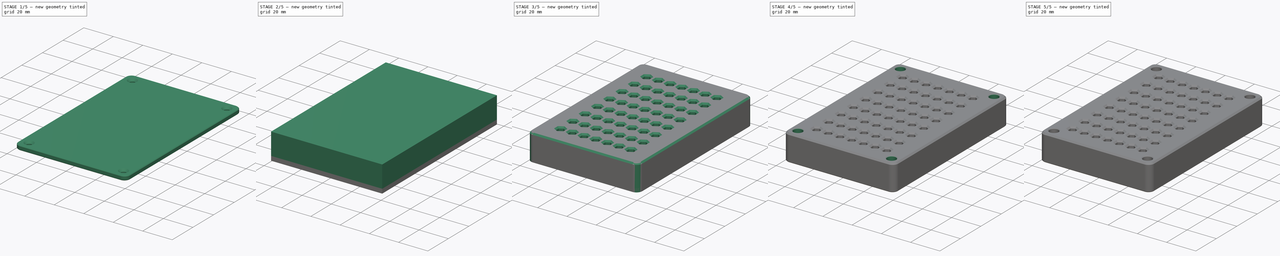
[diagram: build sequence overview — one tinted view per stage of 5, left to right]
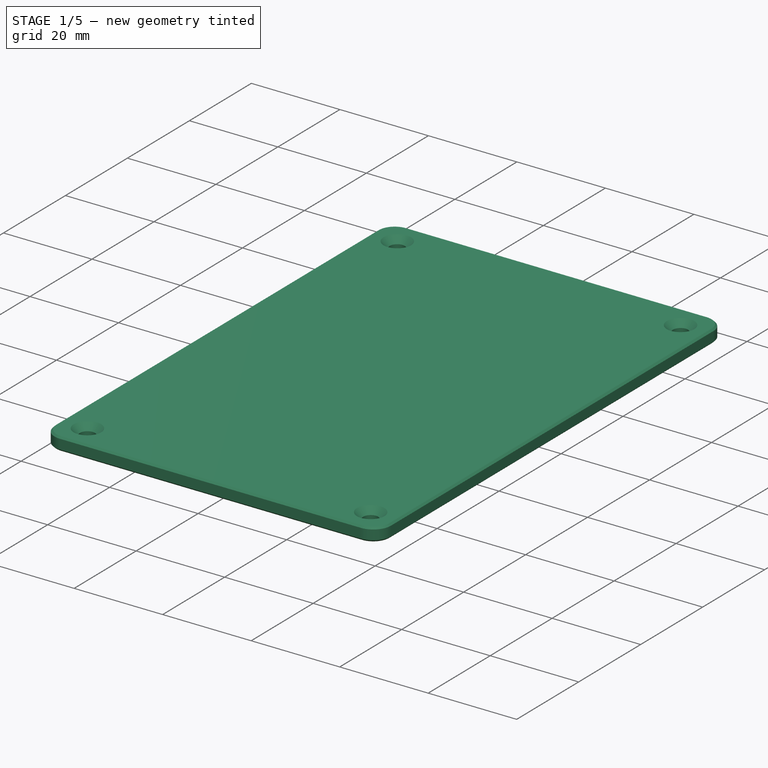
[diagram: stage 1 of 5 — iso view after this stage's code; geometry added in this stage tinted green]
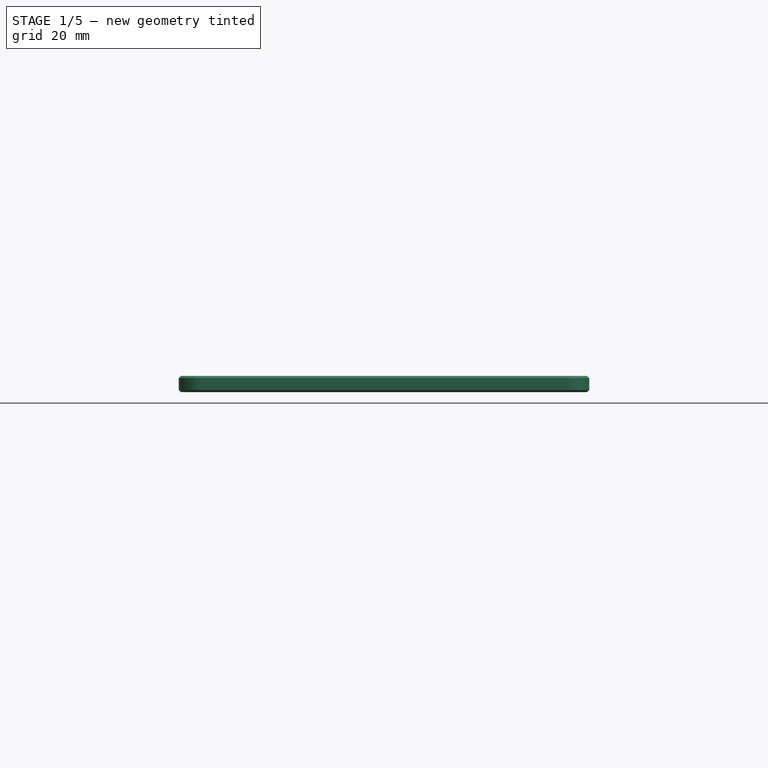
[diagram: stage 1 of 5 — front view after this stage's code; geometry added in this stage tinted green]
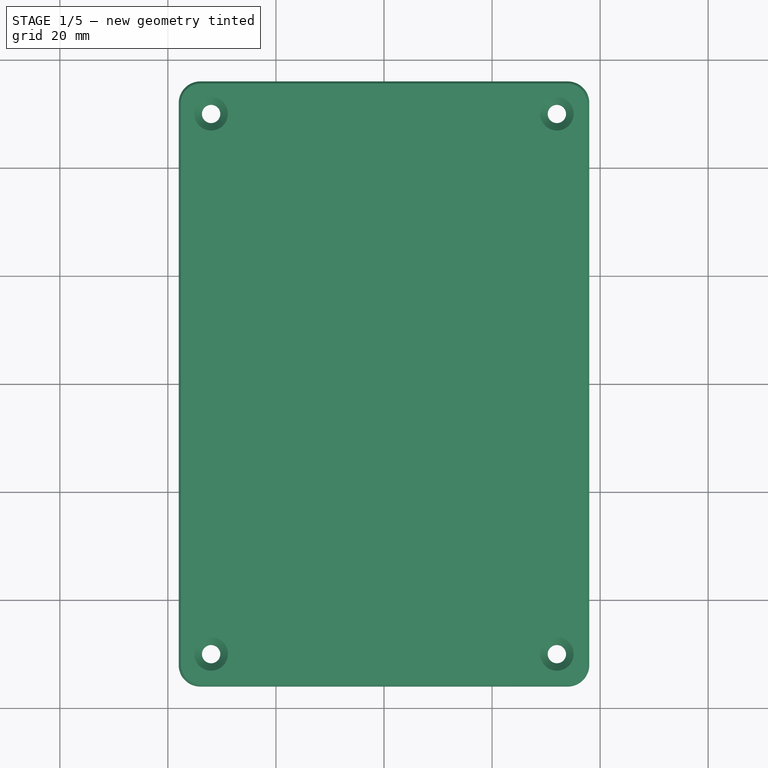
[diagram: stage 1 of 5 — top view after this stage's code; geometry added in this stage tinted green]
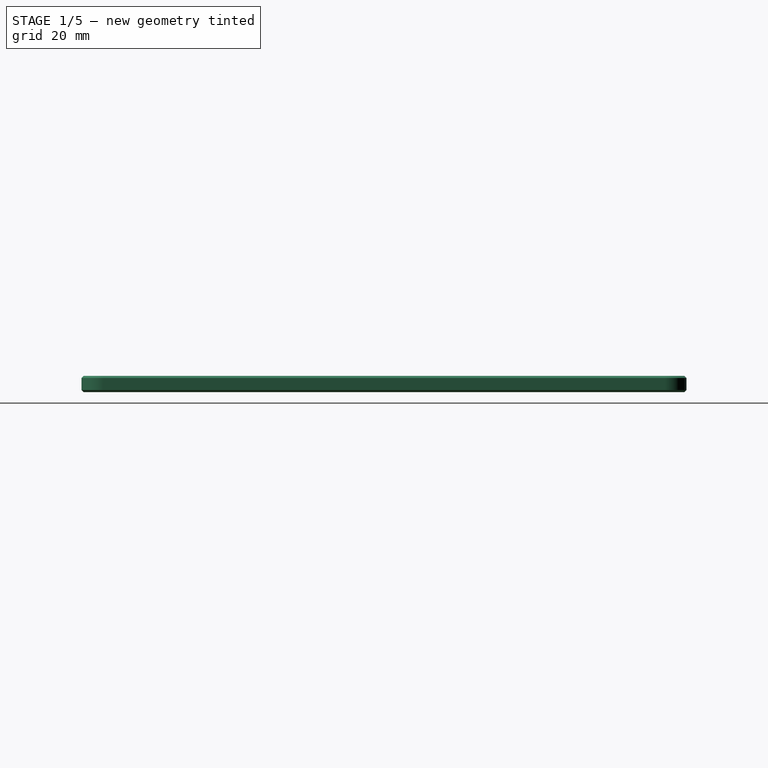
[diagram: stage 1 of 5 — right view after this stage's code; geometry added in this stage tinted green]
FCSTD DOCUMENT  (FreeCAD 0.22R36117 (Git))
Label: bit-holder
License: All rights reserved
LicenseURL: http://en.wikipedia.org/wiki/All_rights_reserved
objects: Sketcher::SketchObject×12, PartDesign::Pocket×7, PartDesign::Chamfer×6, PartDesign::Pad×5, PartDesign::Fillet×3, PartDesign::Body×3, PartDesign::LinearPattern×3, Spreadsheet::Sheet×1, PartDesign::MultiTransform×1
note: 61 computed .brp shape members not serialized (recipe doc carries the construction recipe); baked Part::Feature solids carry a one-line shape summary decoded from their .brp

FEATURE [PartDesign::Body] Body002
  Group = -> [Sketch,Pad,Sketch005,Pocket002,LinearPattern,Sketch006,Pad003,Sketch007,Pocket003,MultiTransform,LinearPattern001,LinearPattern002,Sketch008,Pocket004,Fillet,Chamfer,Chamfer002,Sketch010,Pocket005,Chamfer003]
  Origin = -> Origin002
  Tip = -> Chamfer003
FEATURE [Sketcher::SketchObject] Sketch011
  FullyConstrained = true
  MapMode = 5
  Support = -> [XY_Plane]
  expr: Constraints[8] = <<q>>.plate_x_size
  expr: Constraints[9] = <<q>>.plate_y_size
  sketch-geometry (4):
    g0: LineSegment StartX=-38 StartY=56 StartZ=0 EndX=-38 EndY=-56 EndZ=0
    g1: LineSegment StartX=-38 StartY=-56 StartZ=0 EndX=38 EndY=-56 EndZ=0
    g2: LineSegment StartX=38 StartY=-56 StartZ=0 EndX=38 EndY=56 EndZ=0
    g3: LineSegment StartX=38 StartY=56 StartZ=0 EndX=-38 EndY=56 EndZ=0
  constraints (11):
    c: Coincident(g0,g1)
    c: Coincident(g1,g2)
    c: Coincident(g2,g3)
    c: Coincident(g3,g0)
    c: Vertical(g0)
    c: Vertical(g2)
    c: Horizontal(g1)
    c: Horizontal(g3)
    c: DistanceX(g1,g1) = 76
    c: DistanceY(g2,g2) = 112
    c: Symmetric(g0,g2,g-1)
FEATURE [Sketcher::SketchObject] Sketch012
  FullyConstrained = true
  MapMode = 5
  Placement = pos=(0,0,0) rot=(1,0,0;3.14159rad)
  expr: Constraints[8] = <<q>>.plate_x_size / 2 - 6
  expr: Constraints[9] = <<q>>.plate_y_size / 2 - 6
  sketch-geometry (4):
    g0: Circle CenterX=32 CenterY=-50 CenterZ=0 NormalX=0 NormalY=0 NormalZ=1 AngleXU=0 Radius=1.7
    g1: Circle CenterX=32 CenterY=50 CenterZ=0 NormalX=0 NormalY=0 NormalZ=1 AngleXU=0 Radius=1.7
    g2: Circle CenterX=-32 CenterY=50 CenterZ=0 NormalX=0 NormalY=0 NormalZ=1 AngleXU=0 Radius=1.7
    g3: Circle CenterX=-32 CenterY=-50 CenterZ=0 NormalX=0 NormalY=0 NormalZ=1 AngleXU=0 Radius=1.7
  constraints (10):
    c: Equal(g0,g1)
    c: Equal(g0,g2)
    c: Equal(g0,g3)
    c: Diameter(g0) = 3.4
    c: Symmetric(g3,g1,g-1)
    c: Symmetric(g2,g0,g-1)
    c: Vertical(g0,g1)
    c: Horizontal(g1,g2)
    c: DistanceX(g3,g-1) = 32
    c: DistanceY(g-1,g2) = 50
FEATURE [PartDesign::Pad] Pad004
  Direction = (0,0,1)
  Length = 3
  Length2 = 10
  Profile = -> Sketch011
  ReferenceAxis = -> Sketch011 [N_Axis]
  Suppressed = false
  Type = 0
FEATURE [PartDesign::Pocket] Pocket006
  BaseFeature = -> Pad004
  Direction = (0,0,1)
  Length = 5
  Length2 = 5
  Profile = -> Sketch012
  ReferenceAxis = -> Sketch012 [N_Axis]
  Suppressed = false
  Type = 0
FEATURE [PartDesign::Chamfer] Chamfer004
  Angle = 45
  Base = -> Pocket006 [Edge18,Edge19,Edge17,Edge20]
  BaseFeature = -> Pocket006
  ChamferType = 0
  FlipDirection = false
  Size = 1.4
  Size2 = 1
  SupportTransform = false
  Suppressed = false
  UseAllEdges = false
FEATURE [PartDesign::Fillet] Fillet002
  Base = -> Chamfer004 [Edge11,Edge14,Edge16,Edge12]
  BaseFeature = -> Chamfer004
  Radius = 4
  SupportTransform = false
  Suppressed = false
  UseAllEdges = false
  expr: Radius = <<q>>.box_corner_filet
FEATURE [PartDesign::Chamfer] Chamfer005
  Angle = 45
  Base = -> Fillet002 [Edge5,Edge22]
  BaseFeature = -> Fillet002
  ChamferType = 0
  FlipDirection = false
  Size = 0.4
  Size2 = 1
  SupportTransform = false
  Suppressed = false
  UseAllEdges = false
FEATURE [PartDesign::Body] Body
  Group = -> [Sketch011,Sketch012,Pad004,Pocket006,Chamfer004,Fillet002,Chamfer005]
  Origin = -> Origin
  Tip = -> Chamfer005
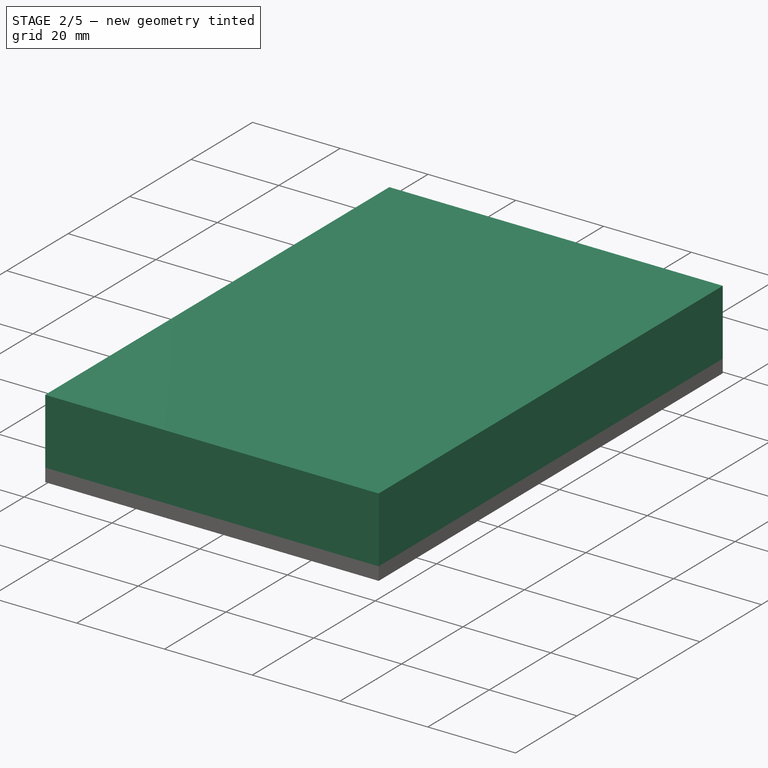
[diagram: stage 2 of 5 — iso view after this stage's code; geometry added in this stage tinted green]
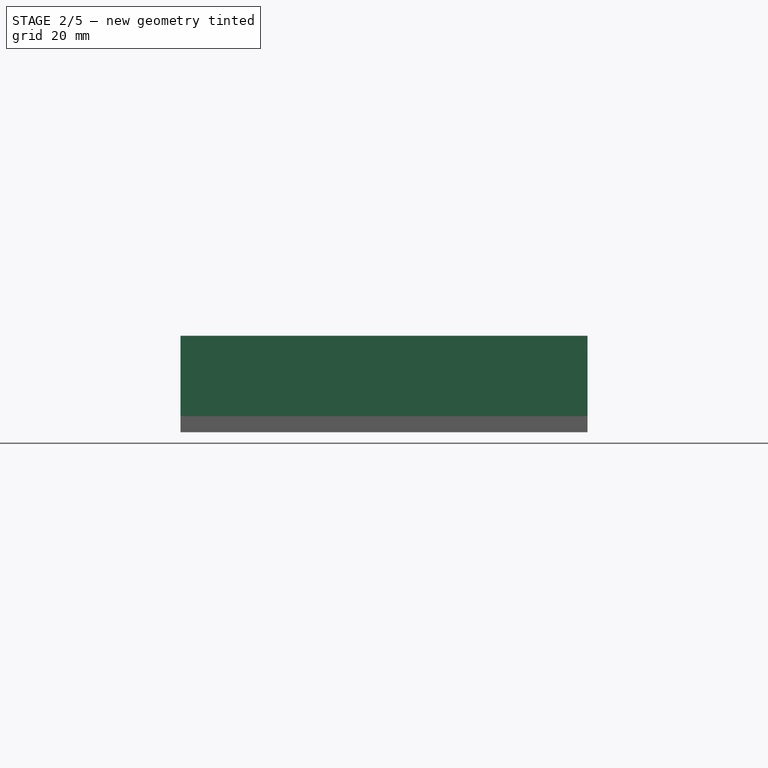
[diagram: stage 2 of 5 — front view after this stage's code; geometry added in this stage tinted green]
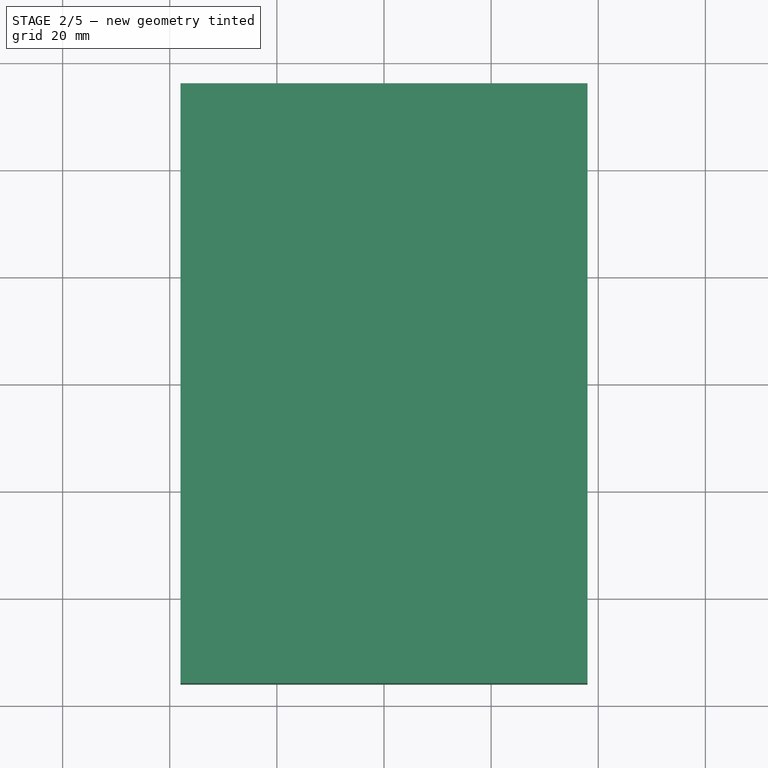
[diagram: stage 2 of 5 — top view after this stage's code; geometry added in this stage tinted green]
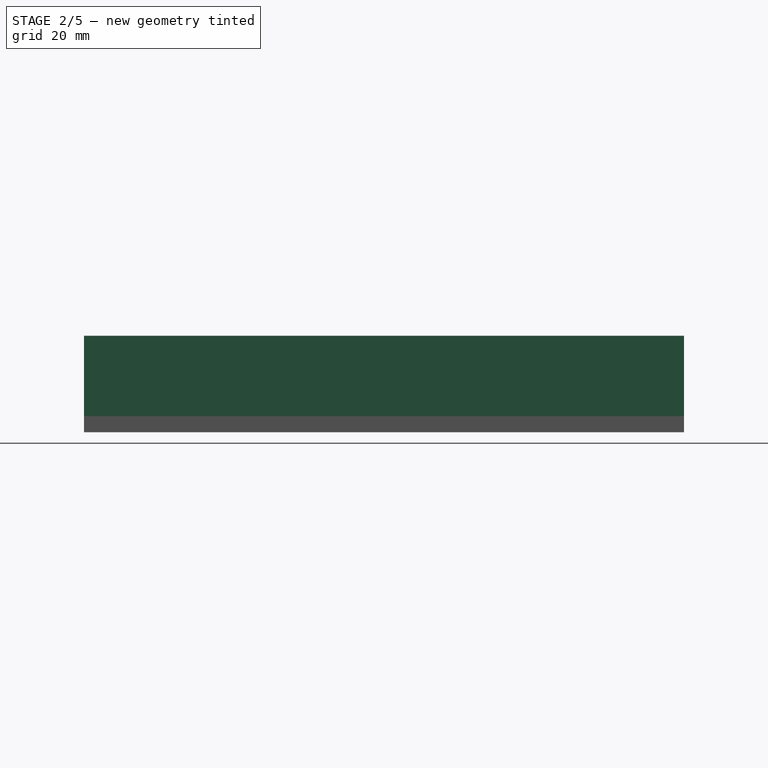
[diagram: stage 2 of 5 — right view after this stage's code; geometry added in this stage tinted green]
FEATURE [PartDesign::Body] Body001
  Group = -> [Sketch001,Pad001,Sketch002,Pocket,Sketch003,Pad002,Sketch004,Pocket001,Fillet001,Chamfer001]
  Origin = -> Origin001
  Tip = -> Chamfer001
FEATURE [Sketcher::SketchObject] Sketch
  FullyConstrained = true
  MapMode = 5
  Support = -> [XY_Plane002]
  expr: Constraints[8] = <<q>>.plate_x_size
  expr: Constraints[9] = <<q>>.plate_y_size
  sketch-geometry (4):
    g0: LineSegment StartX=-38 StartY=56 StartZ=0 EndX=-38 EndY=-56 EndZ=0
    g1: LineSegment StartX=-38 StartY=-56 StartZ=0 EndX=38 EndY=-56 EndZ=0
    g2: LineSegment StartX=38 StartY=-56 StartZ=0 EndX=38 EndY=56 EndZ=0
    g3: LineSegment StartX=38 StartY=56 StartZ=0 EndX=-38 EndY=56 EndZ=0
  constraints (11):
    c: Coincident(g0,g1)
    c: Coincident(g1,g2)
    c: Coincident(g2,g3)
    c: Coincident(g3,g0)
    c: Vertical(g0)
    c: Vertical(g2)
    c: Horizontal(g1)
    c: Horizontal(g3)
    c: DistanceX(g1,g1) = 76
    c: DistanceY(g2,g2) = 112
    c: Symmetric(g0,g2,g-1)
FEATURE [PartDesign::Pad] Pad  label="base"
  Direction = (0,0,1)
  Length = 3
  Length2 = 10
  Profile = -> Sketch
  ReferenceAxis = -> Sketch [N_Axis]
  Suppressed = false
  Type = 0
  expr: Length = <<q>>.plate_below_magnets + <<q>>.magnet_height
FEATURE [Sketcher::SketchObject] Sketch005
  AttachmentOffset = pos=(0,0,3) rot=(0,0,1;0rad)
  FullyConstrained = true
  MapMode = 5
  Placement = pos=(0,0,3) rot=(0,0,1;0rad)
  Support = -> [XY_Plane002]
  expr: .AttachmentOffset.Base.z = <<q>>.plate_below_magnets + <<q>>.magnet_height
  expr: Constraints[10] = <<q>>.plate_y_size / 2 - <<q>>.border - (<<q>>.grid_spacing_y - <<q>>.magnet_width) / 2
  expr: Constraints[7] = <<q>>.magnet_length
  expr: Constraints[8] = <<q>>.magnet_width
  sketch-geometry (4):
    g0: LineSegment StartX=-30 StartY=-37 StartZ=0 EndX=-30 EndY=-47 EndZ=0
    g1: LineSegment StartX=-30 StartY=-47 StartZ=0 EndX=30 EndY=-47 EndZ=0
    g2: LineSegment StartX=30 StartY=-47 StartZ=0 EndX=30 EndY=-37 EndZ=0
    g3: LineSegment StartX=30 StartY=-37 StartZ=0 EndX=-30 EndY=-37 EndZ=0
  constraints (11):
    c: Coincident(g0,g1)
    c: Coincident(g1,g2)
    c: Coincident(g2,g3)
    c: Coincident(g3,g0)
    c: Vertical(g0)
    c: Vertical(g2)
    c: Horizontal(g3)
    c: DistanceX(g3,g3) = 60
    c: DistanceY(g2,g2) = 10
    c: Symmetric(g0,g1,g-2)
    c: DistanceY(g0,g-1) = 47
FEATURE [PartDesign::Pocket] Pocket002  label="single magnet pocket"
  BaseFeature = -> Pad
  Direction = (0,0,-1)
  Length = 3
  Length2 = 5
  Profile = -> Sketch005
  ReferenceAxis = -> Sketch005 [N_Axis]
  Suppressed = false
  Type = 0
  expr: Length = <<q>>.magnet_height
FEATURE [PartDesign::LinearPattern] LinearPattern  label="magnet linear pattern"
  BaseFeature = -> Pocket002
  Direction = -> Y_Axis002
  Length = 84
  Mode = 1
  Occurrences = 8
  Offset = 12
  Originals = -> [Pocket002]
  Suppressed = false
  expr: Occurrences = <<q>>.holes_y
  expr: Offset = <<q>>.grid_spacing_y
FEATURE [Sketcher::SketchObject] Sketch006
  AttachmentOffset = pos=(0,0,3) rot=(0,0,1;0rad)
  FullyConstrained = true
  MapMode = 5
  Placement = pos=(0,0,3) rot=(0,0,1;0rad)
  Support = -> [XY_Plane002]
  expr: .AttachmentOffset.Base.z = <<q>>.plate_base
  expr: Constraints[8] = <<q>>.plate_x_size
  expr: Constraints[9] = <<q>>.plate_y_size
  sketch-geometry (4):
    g0: LineSegment StartX=-38 StartY=56 StartZ=0 EndX=-38 EndY=-56 EndZ=0
    g1: LineSegment StartX=-38 StartY=-56 StartZ=0 EndX=38 EndY=-56 EndZ=0
    g2: LineSegment StartX=38 StartY=-56 StartZ=0 EndX=38 EndY=56 EndZ=0
    g3: LineSegment StartX=38 StartY=56 StartZ=0 EndX=-38 EndY=56 EndZ=0
  constraints (11):
    c: Coincident(g0,g1)
    c: Coincident(g1,g2)
    c: Coincident(g2,g3)
    c: Coincident(g3,g0)
    c: Vertical(g0)
    c: Vertical(g2)
    c: Horizontal(g1)
    c: Horizontal(g3)
    c: DistanceX(g1,g1) = 76
    c: DistanceY(g2,g2) = 112
    c: Symmetric(g0,g2,g-1)
FEATURE [PartDesign::Pad] Pad003
  BaseFeature = -> LinearPattern
  Direction = (0,0,1)
  Length = 15
  Length2 = 10
  Profile = -> Sketch006
  ReferenceAxis = -> Sketch006 [N_Axis]
  Suppressed = false
  Type = 0
  expr: Length = <<q>>.plate_thickness - <<q>>.plate_base
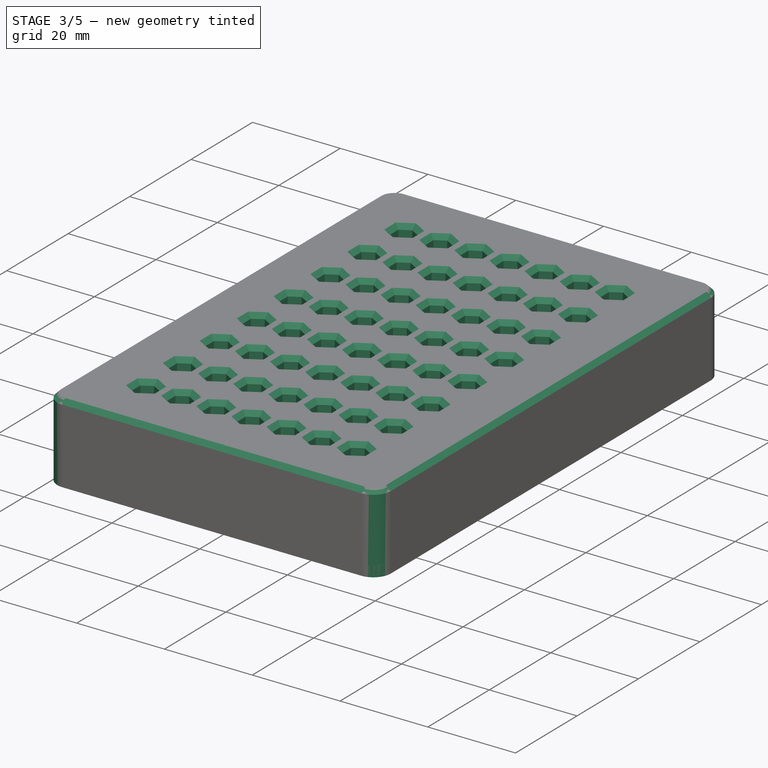
[diagram: stage 3 of 5 — iso view after this stage's code; geometry added in this stage tinted green]
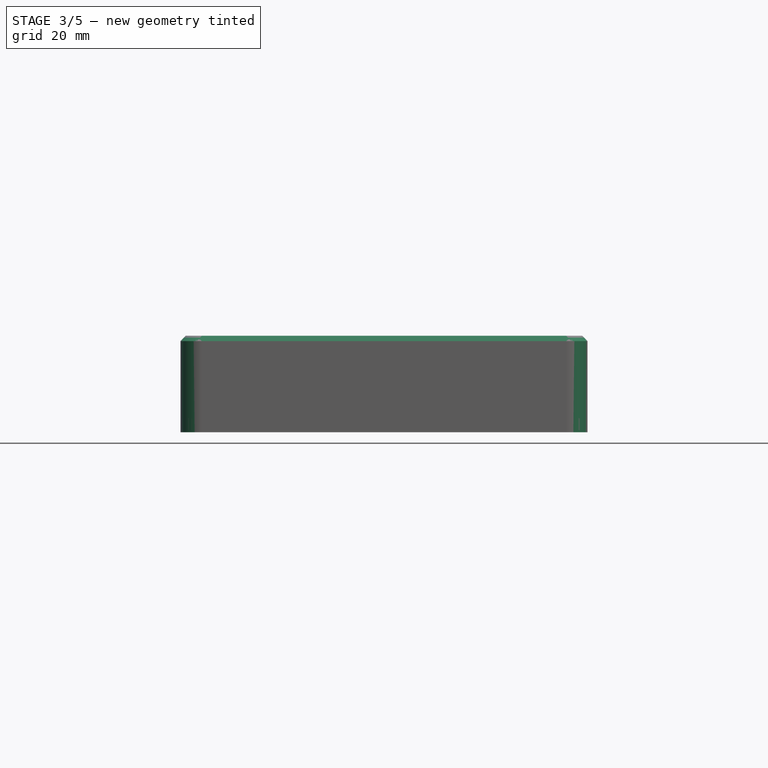
[diagram: stage 3 of 5 — front view after this stage's code; geometry added in this stage tinted green]
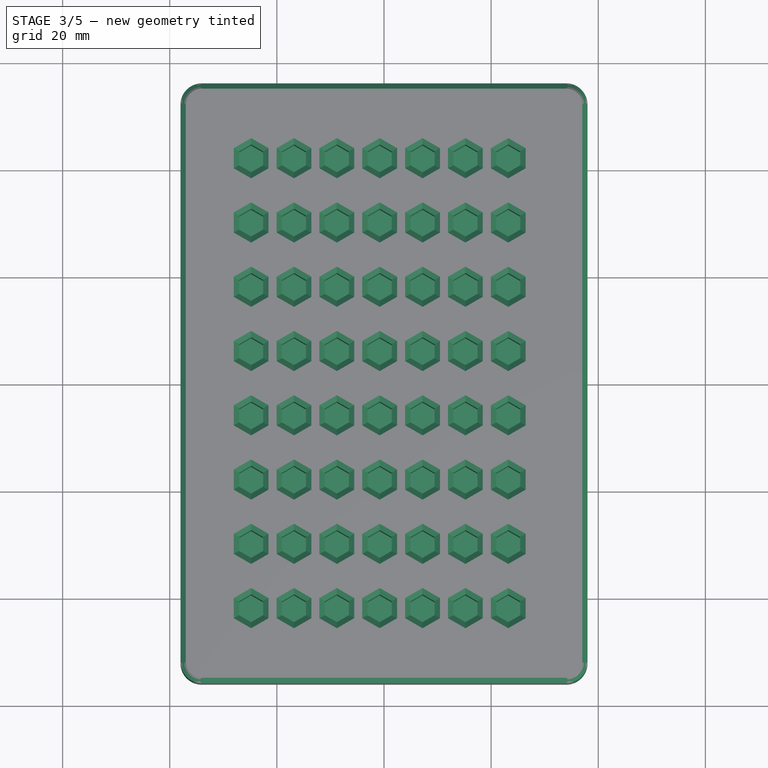
[diagram: stage 3 of 5 — top view after this stage's code; geometry added in this stage tinted green]
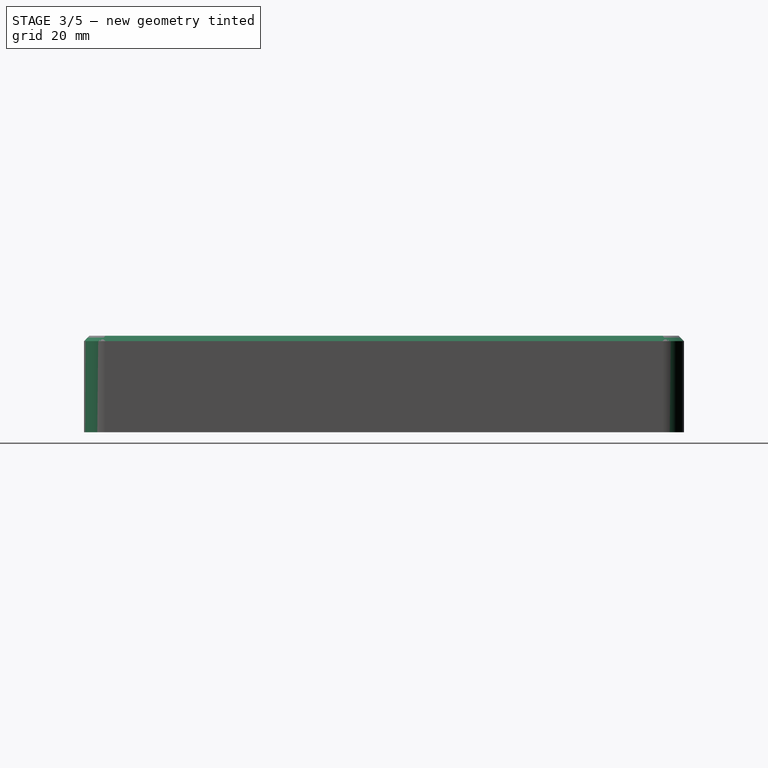
[diagram: stage 3 of 5 — right view after this stage's code; geometry added in this stage tinted green]
FEATURE [Sketcher::SketchObject] Sketch007
  AttachmentOffset = pos=(0,0,18) rot=(0,0,1;0rad)
  FullyConstrained = true
  MapMode = 5
  Placement = pos=(0,0,18) rot=(0,0,1;0rad)
  Support = -> [XY_Plane002]
  expr: .AttachmentOffset.Base.z = <<q>>.plate_thickness
  expr: Constraints[17] = <<q>>.dia
  expr: Constraints[19] = <<q>>.plate_x_size / 2 - <<q>>.border - <<q>>.dia
  expr: Constraints[20] = <<q>>.plate_y_size / 2 - <<q>>.grid_spacing_y / 2 - <<q>>.border
  sketch-geometry (7):
    g0: LineSegment StartX=-22.5538 StartY=-43.299 StartZ=0 EndX=-22.5538 EndY=-40.701 EndZ=0
    g1: LineSegment StartX=-22.5538 StartY=-40.701 StartZ=0 EndX=-24.8038 EndY=-39.4019 EndZ=0
    g2: LineSegment StartX=-24.8038 StartY=-39.4019 StartZ=0 EndX=-27.0538 EndY=-40.701 EndZ=0
    g3: LineSegment StartX=-27.0538 StartY=-40.701 StartZ=0 EndX=-27.0538 EndY=-43.299 EndZ=0
    g4: LineSegment StartX=-27.0538 StartY=-43.299 StartZ=0 EndX=-24.8038 EndY=-44.5981 EndZ=0
    g5: LineSegment StartX=-24.8038 StartY=-44.5981 StartZ=0 EndX=-22.5538 EndY=-43.299 EndZ=0
    g6: Circle CenterX=-24.8038 CenterY=-42 CenterZ=0 NormalX=0 NormalY=0 NormalZ=1 AngleXU=0 Radius=2.59808
  constraints (17):
    c: Coincident(g0,g1)
    c: Coincident(g1,g2)
    c: Coincident(g2,g3)
    c: Coincident(g3,g4)
    c: Coincident(g4,g5)
    c: Coincident(g5,g0)
    c: Equal(g0, g1-g5) x5
    c: PointOnObject(g0,g6)
    c: PointOnObject(g1,g6)
    c: PointOnObject(g2,g6)
    c: PointOnObject(g3,g6)
    c: PointOnObject(g4,g6)
    c: PointOnObject(g5,g6)
    c: Diameter(g6) = 5.19615
    c: Vertical(g0)
    c: DistanceX(g6,g-1) = 24.8038
    c: DistanceY(g6,g-1) = 42
FEATURE [PartDesign::Pocket] Pocket003
  BaseFeature = -> Pad003
  Direction = (0,0,-1)
  Length = 14.4
  Length2 = 5
  Profile = -> Sketch007
  ReferenceAxis = -> Sketch007 [N_Axis]
  Suppressed = false
  Type = 0
  expr: Length = <<q>>.plate_thickness - <<q>>.plate_base - <<q>>.magnet_pad
FEATURE [PartDesign::LinearPattern] LinearPattern001
  Direction = -> Y_Axis002
  Length = 84
  Mode = 1
  Occurrences = 8
  Offset = 12
  Suppressed = false
  expr: Occurrences = <<q>>.holes_y
  expr: Offset = <<q>>.grid_spacing_y
FEATURE [PartDesign::LinearPattern] LinearPattern002
  Direction = -> X_Axis002
  Length = 48
  Mode = 1
  Occurrences = 7
  Offset = 8
  Suppressed = false
  expr: Occurrences = <<q>>.holes_x
  expr: Offset = <<q>>.grid_spacing_x
FEATURE [PartDesign::MultiTransform] MultiTransform
  BaseFeature = -> Pocket003
  Originals = -> [Pocket003]
  Suppressed = false
  Transformations = -> [LinearPattern001,LinearPattern002]
FEATURE [Sketcher::SketchObject] Sketch008
  FullyConstrained = true
  MapMode = 5
  Placement = pos=(0,0,0) rot=(1,0,0;3.14159rad)
  expr: Constraints[8] = <<q>>.plate_x_size / 2 - 6
  expr: Constraints[9] = <<q>>.plate_y_size / 2 - 6
  sketch-geometry (4):
    g0: Circle CenterX=32 CenterY=-50 CenterZ=0 NormalX=0 NormalY=0 NormalZ=1 AngleXU=0 Radius=1.3
    g1: Circle CenterX=32 CenterY=50 CenterZ=0 NormalX=0 NormalY=0 NormalZ=1 AngleXU=0 Radius=1.3
    g2: Circle CenterX=-32 CenterY=50 CenterZ=0 NormalX=0 NormalY=0 NormalZ=1 AngleXU=0 Radius=1.3
    g3: Circle CenterX=-32 CenterY=-50 CenterZ=0 NormalX=0 NormalY=0 NormalZ=1 AngleXU=0 Radius=1.3
  constraints (10):
    c: Equal(g0,g1)
    c: Equal(g0,g2)
    c: Equal(g0,g3)
    c: Diameter(g0) = 2.6
    c: Symmetric(g3,g1,g-1)
    c: Symmetric(g2,g0,g-1)
    c: Vertical(g0,g1)
    c: Horizontal(g1,g2)
    c: DistanceX(g3,g-1) = 32
    c: DistanceY(g-1,g2) = 50
FEATURE [PartDesign::Pocket] Pocket004
  BaseFeature = -> MultiTransform
  Direction = (0,0,1)
  Length = 12
  Length2 = 5
  Profile = -> Sketch008
  ReferenceAxis = -> Sketch008 [N_Axis]
  Refine = true
  Suppressed = false
  Type = 0
  expr: Length = <<q>>.plate_thickness - 6
FEATURE [PartDesign::Fillet] Fillet
  Base = -> Pocket004 [Edge115,Edge1127,Edge1128,Edge113]
  BaseFeature = -> Pocket004
  Radius = 4
  SupportTransform = false
  Suppressed = false
  UseAllEdges = false
FEATURE [PartDesign::Chamfer] Chamfer
  Angle = 45
  Base = -> Fillet [Face46]
  BaseFeature = -> Fillet
  ChamferType = 0
  FlipDirection = false
  Size = 1
  Size2 = 1
  SupportTransform = false
  Suppressed = false
  UseAllEdges = false
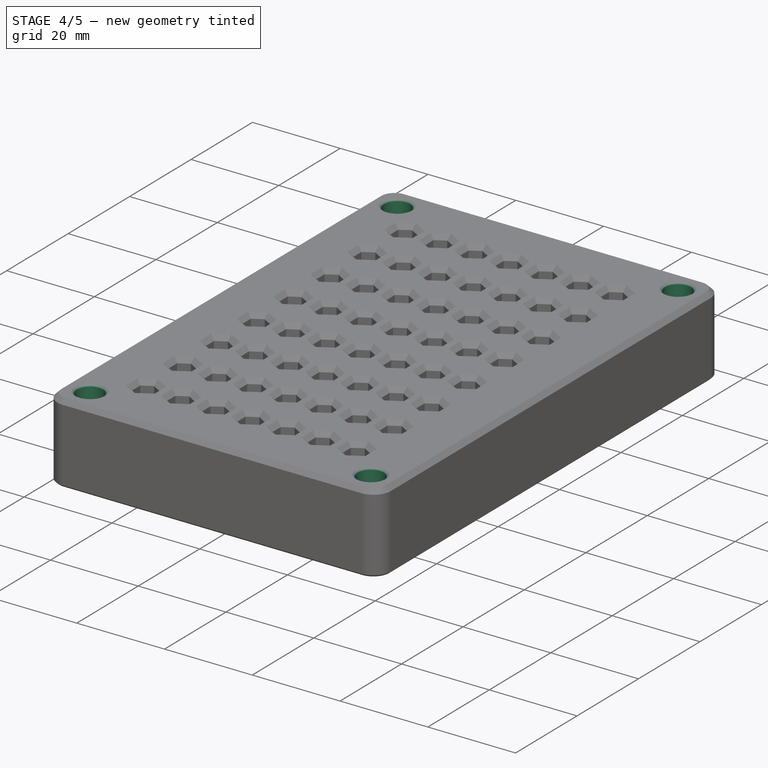
[diagram: stage 4 of 5 — iso view after this stage's code; geometry added in this stage tinted green]
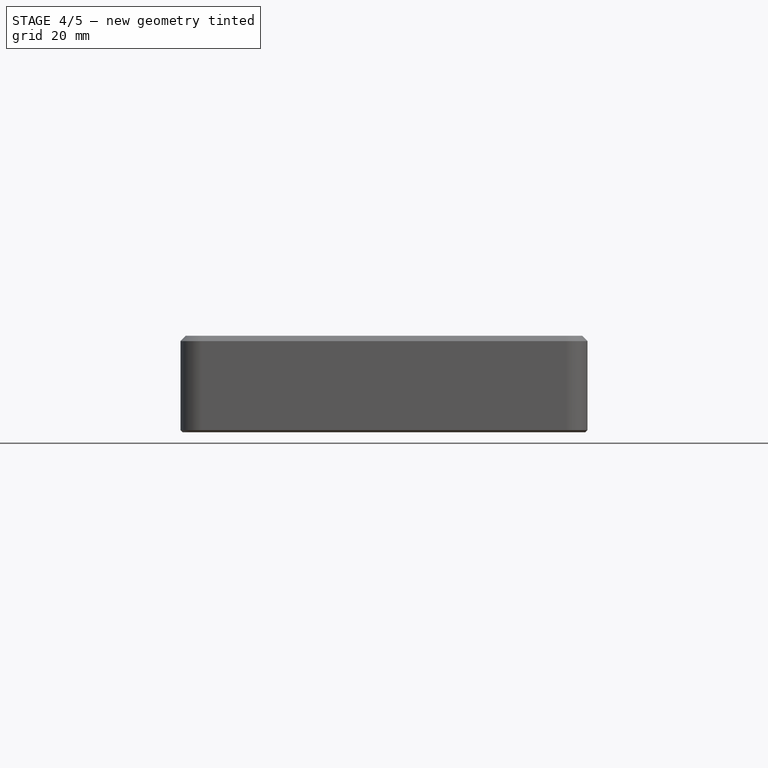
[diagram: stage 4 of 5 — front view after this stage's code; geometry added in this stage tinted green]
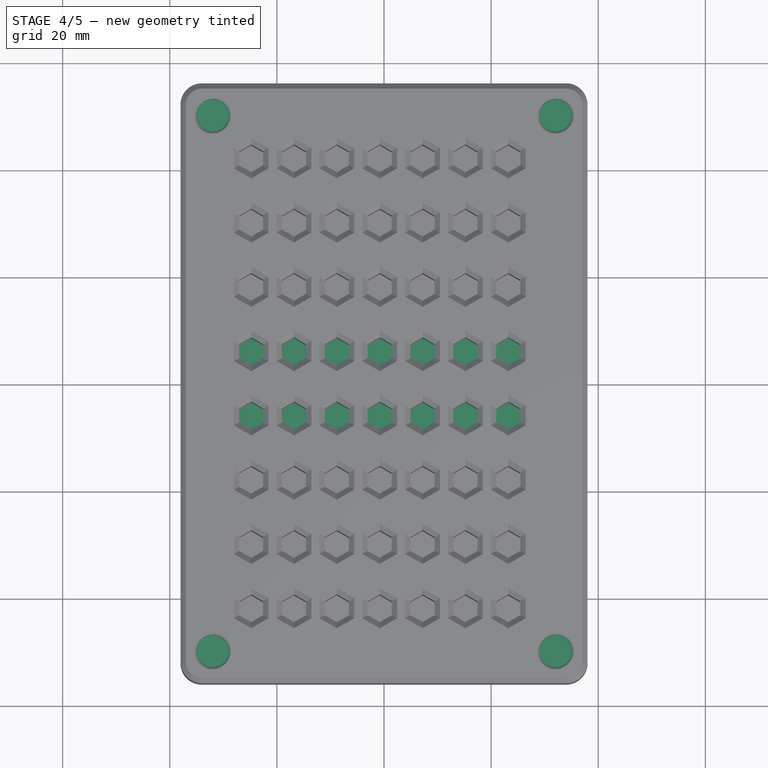
[diagram: stage 4 of 5 — top view after this stage's code; geometry added in this stage tinted green]
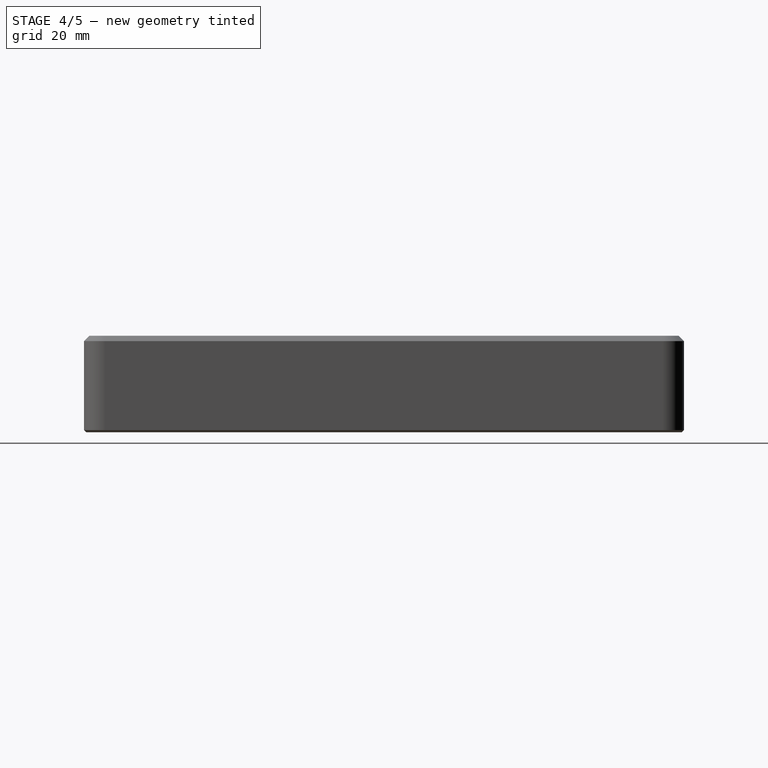
[diagram: stage 4 of 5 — right view after this stage's code; geometry added in this stage tinted green]
FEATURE [Spreadsheet::Sheet] Spreadsheet  label="q"
  cells = A2='size; B2(size)=4.5; A3='dia; B3(dia)==B2 / sin(60); A5='magnet length; B5(magnet_length)=60; A6='magnet width; B6(magnet_width)=10; A7='magnet height; B7(magnet_height)=3; A9='grid spacing x; B9(grid_spacing_x)=8; A10='grid spacing y; B10(grid_spacing_y)=12; A11='holes x; B11(holes_x)=7; A12='holes y; B12(holes_y)=8; A14='border; B14(border)=8; A16='plate x size; B16(plate_x_size)==2 * border + magnet_length; A17='plate y size; B17(plate_y_size)==2 * border + holes_y * grid_spacing_y; A18='plate thickness; B18(plate_thickness)=18; A19='plate below magnets; B19(plate_below_magnets)=0; A20='magnet pad; B20(magnet_pad)=0.6; A21='plate base; B21(plate_base)==plate_below_magnets + magnet_height; A22='hole depth; B22(hole_depth)==plate_thickness - plate_base - magnet_pad; A24='box corner filet; B24(box_corner_filet)=4
FEATURE [Sketcher::SketchObject] Sketch001
  FullyConstrained = true
  MapMode = 5
  Support = -> [XY_Plane001]
  expr: Constraints[8] = <<q>>.magnet_length + 10
  expr: Constraints[9] = <<q>>.magnet_width + 10
  sketch-geometry (4):
    g0: LineSegment StartX=-35 StartY=10 StartZ=0 EndX=-35 EndY=-10 EndZ=0
    g1: LineSegment StartX=-35 StartY=-10 StartZ=0 EndX=35 EndY=-10 EndZ=0
    g2: LineSegment StartX=35 StartY=-10 StartZ=0 EndX=35 EndY=10 EndZ=0
    g3: LineSegment StartX=35 StartY=10 StartZ=0 EndX=-35 EndY=10 EndZ=0
  constraints (11):
    c: Coincident(g0,g1)
    c: Coincident(g1,g2)
    c: Coincident(g2,g3)
    c: Coincident(g3,g0)
    c: Vertical(g0)
    c: Vertical(g2)
    c: Horizontal(g1)
    c: Horizontal(g3)
    c: DistanceX(g3,g3) = 70
    c: DistanceY(g0,g0) = 20
    c: Symmetric(g0,g2,g-1)
FEATURE [PartDesign::Pad] Pad001
  Direction = (0,0,1)
  Length = 5
  Length2 = 10
  Profile = -> Sketch001
  ReferenceAxis = -> Sketch001 [N_Axis]
  Suppressed = false
  Type = 0
FEATURE [PartDesign::Chamfer] Chamfer002
  Angle = 45
  Base = -> Chamfer [Face4]
  BaseFeature = -> Chamfer
  ChamferType = 0
  FlipDirection = false
  Size = 0.4
  Size2 = 1
  SupportTransform = false
  Suppressed = false
  UseAllEdges = false
FEATURE [Sketcher::SketchObject] Sketch010
  FullyConstrained = true
  MapMode = 5
  Placement = pos=(0,0,18) rot=(1,0,0;0rad)
  expr: .Placement.Base.z = <<q>>.plate_thickness
  expr: Constraints[8] = <<q>>.plate_x_size / 2 - 6
  expr: Constraints[9] = <<q>>.plate_y_size / 2 - 6
  sketch-geometry (4):
    g0: Circle CenterX=32 CenterY=-50 CenterZ=0 NormalX=0 NormalY=0 NormalZ=1 AngleXU=0 Radius=3
    g1: Circle CenterX=32 CenterY=50 CenterZ=0 NormalX=0 NormalY=0 NormalZ=1 AngleXU=0 Radius=3
    g2: Circle CenterX=-32 CenterY=50 CenterZ=0 NormalX=0 NormalY=0 NormalZ=1 AngleXU=0 Radius=3
    g3: Circle CenterX=-32 CenterY=-50 CenterZ=0 NormalX=0 NormalY=0 NormalZ=1 AngleXU=0 Radius=3
  constraints (10):
    c: Equal(g0,g1)
    c: Equal(g0,g2)
    c: Equal(g0,g3)
    c: Diameter(g0) = 6
    c: Symmetric(g3,g1,g-1)
    c: Symmetric(g2,g0,g-1)
    c: Vertical(g0,g1)
    c: Horizontal(g1,g2)
    c: DistanceX(g3,g-1) = 32
    c: DistanceY(g-1,g2) = 50
FEATURE [PartDesign::Pocket] Pocket005
  BaseFeature = -> Chamfer002
  Direction = (0,0,-1)
  Length = 3
  Length2 = 5
  Profile = -> Sketch010
  ReferenceAxis = -> Sketch010 [N_Axis]
  Suppressed = false
  Type = 0
FEATURE [PartDesign::Chamfer] Chamfer003
  Angle = 45
  Base = -> Pocket005 [Edge297,Edge412,Edge200,Edge73]
  BaseFeature = -> Pocket005
  ChamferType = 0
  FlipDirection = false
  Size = 0.4
  Size2 = 1
  SupportTransform = false
  Suppressed = false
  UseAllEdges = false
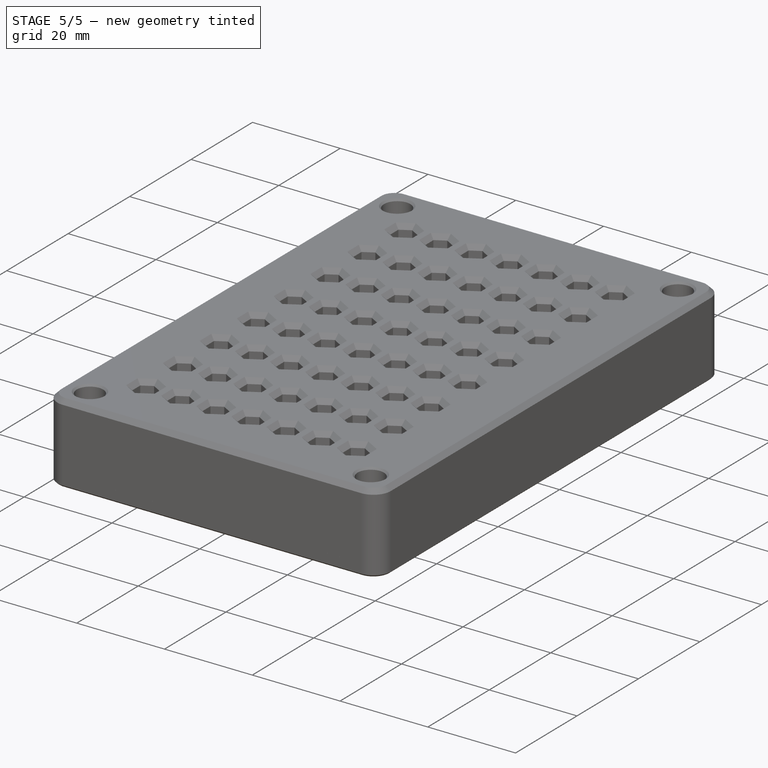
[diagram: stage 5 of 5 — iso view after this stage's code; geometry added in this stage tinted green]
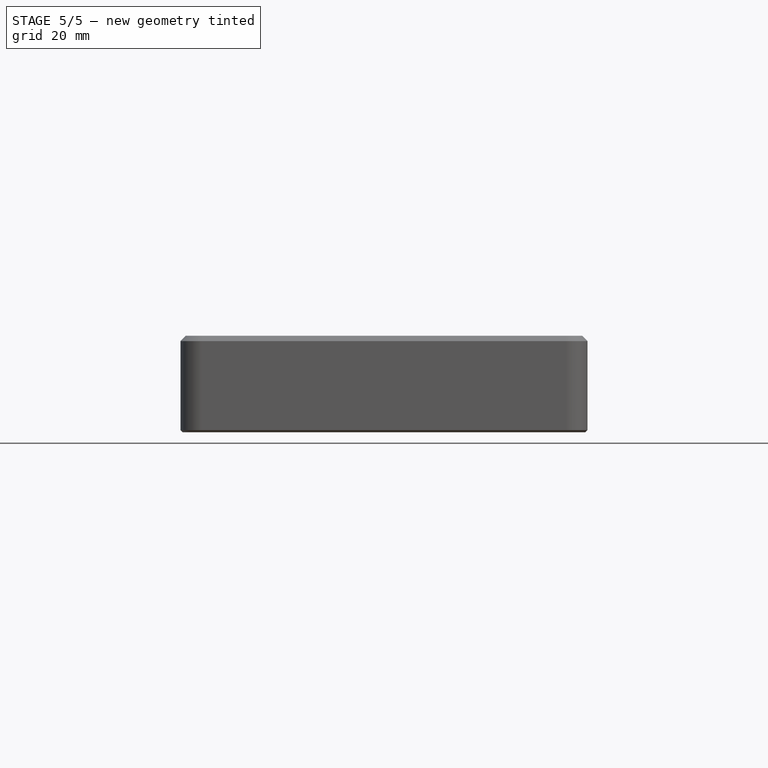
[diagram: stage 5 of 5 — front view after this stage's code; geometry added in this stage tinted green]
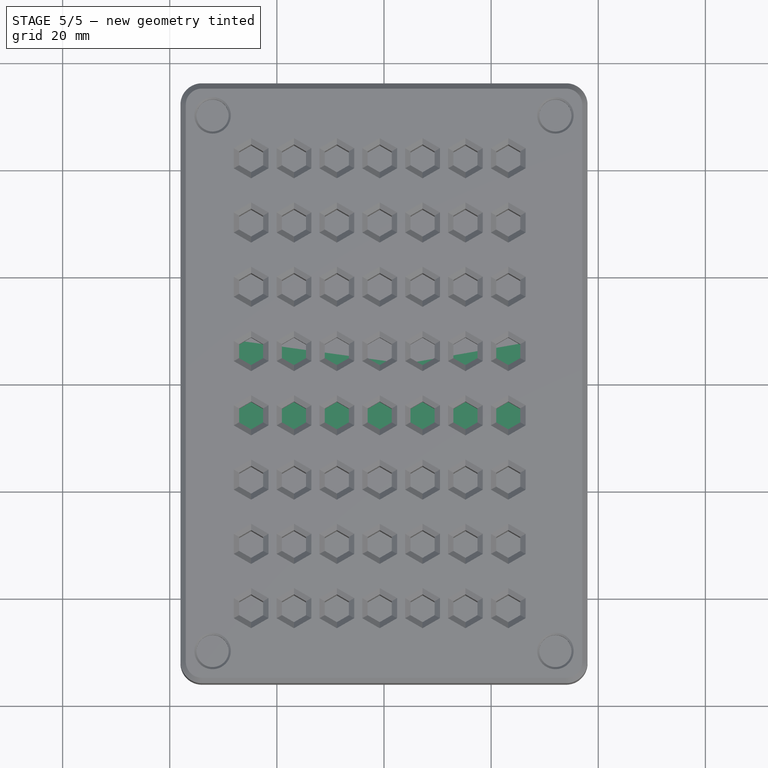
[diagram: stage 5 of 5 — top view after this stage's code; geometry added in this stage tinted green]
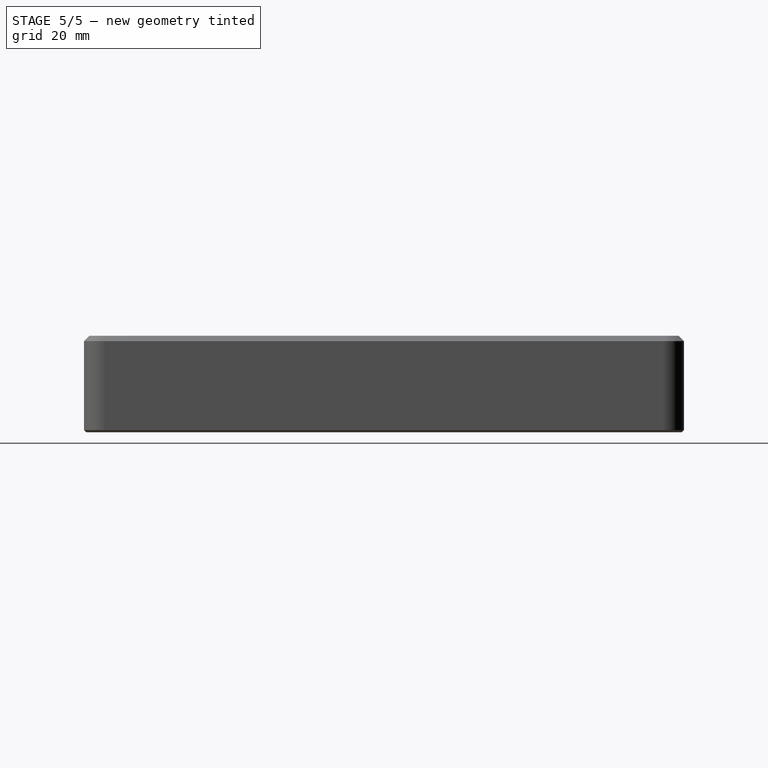
[diagram: stage 5 of 5 — right view after this stage's code; geometry added in this stage tinted green]
FEATURE [Sketcher::SketchObject] Sketch002
  FullyConstrained = true
  MapMode = 5
  Placement = pos=(0,0,5) rot=(0,0,1;0rad)
  Support = -> [Pad001]
  expr: Constraints[8] = <<q>>.magnet_length + 1
  expr: Constraints[9] = <<q>>.magnet_width + 1
  sketch-geometry (4):
    g0: LineSegment StartX=-30.5 StartY=5.5 StartZ=0 EndX=-30.5 EndY=-5.5 EndZ=0
    g1: LineSegment StartX=-30.5 StartY=-5.5 StartZ=0 EndX=30.5 EndY=-5.5 EndZ=0
    g2: LineSegment StartX=30.5 StartY=-5.5 StartZ=0 EndX=30.5 EndY=5.5 EndZ=0
    g3: LineSegment StartX=30.5 StartY=5.5 StartZ=0 EndX=-30.5 EndY=5.5 EndZ=0
  constraints (11):
    c: Coincident(g0,g1)
    c: Coincident(g1,g2)
    c: Coincident(g2,g3)
    c: Coincident(g3,g0)
    c: Vertical(g0)
    c: Vertical(g2)
    c: Horizontal(g1)
    c: Horizontal(g3)
    c: DistanceX(g3,g3) = 61
    c: DistanceY(g2,g2) = 11
    c: Symmetric(g0,g2,g-1)
FEATURE [PartDesign::Pocket] Pocket
  BaseFeature = -> Pad001
  Direction = (0,0,-1)
  Length = 3
  Length2 = 5
  Profile = -> Sketch002
  ReferenceAxis = -> Sketch002 [N_Axis]
  Suppressed = false
  Type = 0
  expr: Length = <<q>>.magnet_height
FEATURE [Sketcher::SketchObject] Sketch003
  ExternalGeometry = -> [Pocket]
  FullyConstrained = true
  MapMode = 5
  Placement = pos=(0,0,5) rot=(0,0,1;0rad)
  Support = -> [Pocket]
  sketch-geometry (4):
    g0: LineSegment StartX=-35 StartY=10 StartZ=0 EndX=-35 EndY=-10 EndZ=0
    g1: LineSegment StartX=-35 StartY=-10 StartZ=0 EndX=35 EndY=-10 EndZ=0
    g2: LineSegment StartX=35 StartY=-10 StartZ=0 EndX=35 EndY=10 EndZ=0
    g3: LineSegment StartX=35 StartY=10 StartZ=0 EndX=-35 EndY=10 EndZ=0
  constraints (10):
    c: Coincident(g0,g1)
    c: Coincident(g1,g2)
    c: Coincident(g2,g3)
    c: Coincident(g3,g0)
    c: Vertical(g0)
    c: Vertical(g2)
    c: Horizontal(g1)
    c: Horizontal(g3)
    c: Coincident(g0,g-3)
    c: Coincident(g1,g-4)
FEATURE [PartDesign::Pad] Pad002
  BaseFeature = -> Pocket
  Direction = (0,0,1)
  Length = 6
  Length2 = 10
  Profile = -> Sketch003
  ReferenceAxis = -> Sketch003 [N_Axis]
  Suppressed = false
  Type = 0
FEATURE [Sketcher::SketchObject] Sketch004
  FullyConstrained = false
  MapMode = 5
  Placement = pos=(0,0,11) rot=(0,0,1;0rad)
  Support = -> [Pad002]
  expr: Constraints[71] = <<q>>.dia
  sketch-geometry (28):
    g0: LineSegment StartX=-11.9908 StartY=-2.59806 StartZ=0 EndX=-9.7454 EndY=-1.29103 EndZ=0
    g1: LineSegment StartX=-9.7454 StartY=-1.29103 StartZ=0 EndX=-9.75463 EndY=1.30703 EndZ=0
    g2: LineSegment StartX=-9.75463 StartY=1.30703 StartZ=0 EndX=-12.0092 EndY=2.59806 EndZ=0
    g3: LineSegment StartX=-12.0092 StartY=2.59806 StartZ=0 EndX=-14.2546 EndY=1.29103 EndZ=0
    g4: LineSegment StartX=-14.2546 StartY=1.29103 StartZ=0 EndX=-14.2454 EndY=-1.30703 EndZ=0
    g5: LineSegment StartX=-14.2454 StartY=-1.30703 StartZ=0 EndX=-11.9908 EndY=-2.59806 EndZ=0
    g6: Circle CenterX=-12 CenterY=0 CenterZ=0 NormalX=0 NormalY=0 NormalZ=1 AngleXU=0 Radius=2.59808
    g7: LineSegment StartX=-3.99307 StartY=-2.59807 StartZ=0 EndX=-1.74654 EndY=-1.29303 EndZ=0
    g8: LineSegment StartX=-1.74654 StartY=-1.29303 StartZ=0 EndX=-1.75348 EndY=1.30504 EndZ=0
    g9: LineSegment StartX=-1.75348 StartY=1.30504 StartZ=0 EndX=-4.00693 EndY=2.59807 EndZ=0
    g10: LineSegment StartX=-4.00693 StartY=2.59807 StartZ=0 EndX=-6.25346 EndY=1.29303 EndZ=0
    g11: LineSegment StartX=-6.25346 StartY=1.29303 StartZ=0 EndX=-6.24652 EndY=-1.30504 EndZ=0
    g12: LineSegment StartX=-6.24652 StartY=-1.30504 StartZ=0 EndX=-3.99307 EndY=-2.59807 EndZ=0
    g13: Circle CenterX=-4 CenterY=0 CenterZ=0 NormalX=0 NormalY=0 NormalZ=1 AngleXU=0 Radius=2.59808
    g14: LineSegment StartX=4 StartY=-2.59808 StartZ=0 EndX=6.25 EndY=-1.29904 EndZ=0
    g15: LineSegment StartX=6.25 StartY=-1.29904 StartZ=0 EndX=6.25 EndY=1.29904 EndZ=0
    g16: LineSegment StartX=6.25 StartY=1.29904 StartZ=0 EndX=4 EndY=2.59808 EndZ=0
    g17: LineSegment StartX=4 StartY=2.59808 StartZ=0 EndX=1.75 EndY=1.29904 EndZ=0
    g18: LineSegment StartX=1.75 StartY=1.29904 StartZ=0 EndX=1.75 EndY=-1.29904 EndZ=0
    g19: LineSegment StartX=1.75 StartY=-1.29904 StartZ=0 EndX=4 EndY=-2.59808 EndZ=0
    g20: Circle CenterX=4 CenterY=0 CenterZ=0 NormalX=0 NormalY=0 NormalZ=1 AngleXU=0 Radius=2.59808
    g21: LineSegment StartX=12.1047 StartY=-2.59597 StartZ=0 EndX=14.3005 EndY=-1.20735 EndZ=0
    g22: LineSegment StartX=14.3005 StartY=-1.20735 StartZ=0 EndX=14.1958 EndY=1.38861 EndZ=0
    g23: LineSegment StartX=14.1958 StartY=1.38861 StartZ=0 EndX=11.8953 EndY=2.59597 EndZ=0
    g24: LineSegment StartX=11.8953 StartY=2.59597 StartZ=0 EndX=9.6995 EndY=1.20735 EndZ=0
    g25: LineSegment StartX=9.6995 StartY=1.20735 StartZ=0 EndX=9.80415 EndY=-1.38861 EndZ=0
    g26: LineSegment StartX=9.80415 StartY=-1.38861 StartZ=0 EndX=12.1047 EndY=-2.59597 EndZ=0
    g27: Circle CenterX=12 CenterY=0 CenterZ=0 NormalX=0 NormalY=0 NormalZ=1 AngleXU=0 Radius=2.59808
  constraints (63):
    c: Coincident(g0,g1)
    c: Coincident(g1,g2)
    c: Coincident(g2,g3)
    c: Coincident(g3,g4)
    c: Coincident(g4,g5)
    c: Coincident(g5,g0)
    c: Equal(g0, g1-g5) x5
    c: PointOnObject(g0,g6)
    c: PointOnObject(g1,g6)
    c: PointOnObject(g2,g6)
    c: PointOnObject(g3,g6)
    c: PointOnObject(g4,g6)
    c: PointOnObject(g5,g6)
    c: Coincident(g7,g8)
    c: Coincident(g8,g9)
    c: Coincident(g9,g10)
    c: Coincident(g10,g11)
    c: Coincident(g11,g12)
    c: Coincident(g12,g7)
    c: Equal(g7, g8-g12) x5
    c: PointOnObject(g7,g13)
    c: PointOnObject(g8,g13)
    c: PointOnObject(g9,g13)
    c: PointOnObject(g10,g13)
    c: PointOnObject(g11,g13)
    c: PointOnObject(g12,g13)
    c: Coincident(g14,g15)
    c: Coincident(g15,g16)
    c: Coincident(g16,g17)
    c: Coincident(g17,g18)
    c: Coincident(g18,g19)
    c: Coincident(g19,g14)
    c: Equal(g14, g15-g19) x5
    c: PointOnObject(g14,g20)
    c: PointOnObject(g15,g20)
    c: PointOnObject(g16,g20)
    c: PointOnObject(g17,g20)
    c: PointOnObject(g18,g20)
    c: PointOnObject(g19,g20)
    c: Coincident(g21,g22)
    c: Coincident(g22,g23)
    c: Coincident(g23,g24)
    c: Coincident(g24,g25)
    c: Coincident(g25,g26)
    c: Coincident(g26,g21)
    c: Equal(g21, g22-g26) x5
    c: PointOnObject(g21,g27)
    c: PointOnObject(g22,g27)
    c: PointOnObject(g23,g27)
    c: PointOnObject(g24,g27)
    c: PointOnObject(g25,g27)
    c: PointOnObject(g26,g27)
    c: Equal(g6,g13)
    c: Equal(g13,g20)
    c: Equal(g20,g27)
    c: Diameter(g27) = 5.19615
    c: DistanceX(g6,g13) = 8
    c: DistanceX(g13,g20) = 8
    c: Symmetric(g20,g13,g-2)
    c: Symmetric(g27,g6,g-2)
    c: Vertical(g18)
    c: PointOnObject(g27,g-1)
    c: PointOnObject(g20,g-1)
FEATURE [PartDesign::Pocket] Pocket001
  BaseFeature = -> Pad002
  Direction = (0,0,-1)
  Length = 5
  Length2 = 5
  Profile = -> Sketch004
  ReferenceAxis = -> Sketch004 [N_Axis]
  Refine = true
  Suppressed = false
  Type = 0
FEATURE [PartDesign::Fillet] Fillet001
  Base = -> Pocket001 [Face3]
  BaseFeature = -> Pocket001
  Radius = 1
  SupportTransform = false
  Suppressed = false
  UseAllEdges = false
FEATURE [PartDesign::Chamfer] Chamfer001
  Angle = 45
  Base = -> Fillet001 [Face4]
  BaseFeature = -> Fillet001
  ChamferType = 0
  FlipDirection = false
  Size = 1
  Size2 = 1
  SupportTransform = false
  Suppressed = false
  UseAllEdges = false
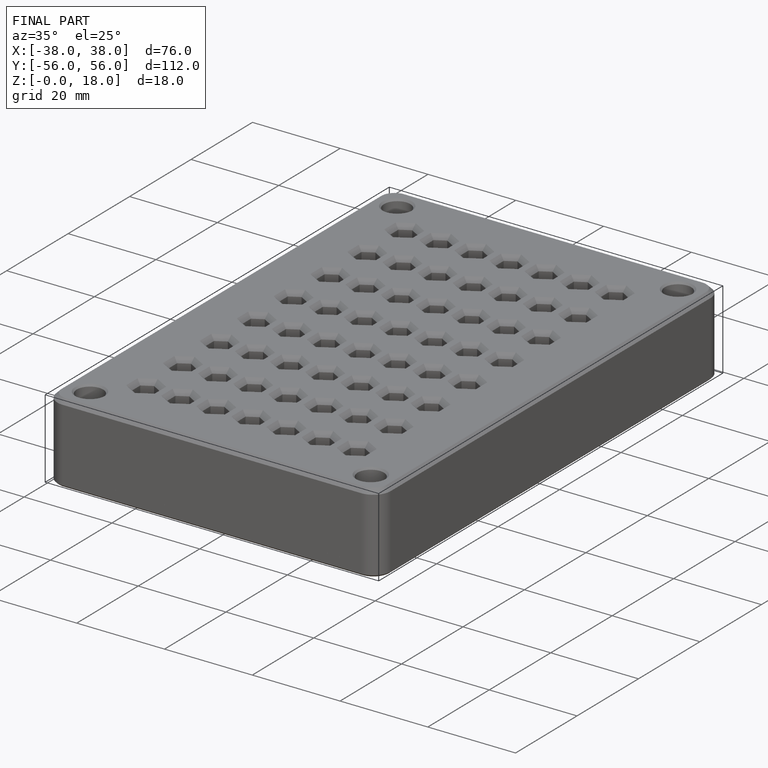
[diagram: finished part — iso view with bounding-box wireframe]
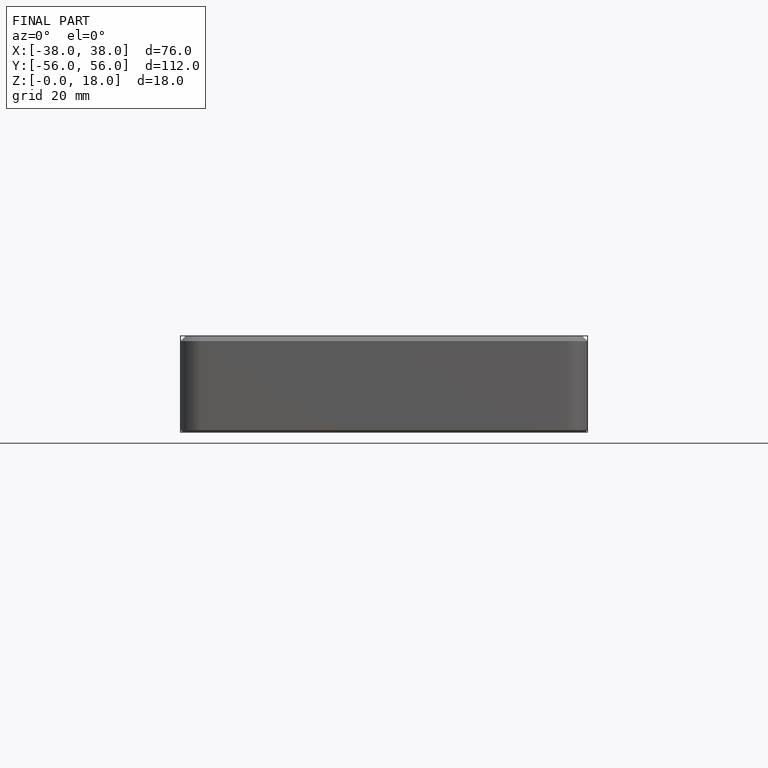
[diagram: finished part — front view with bounding-box wireframe]
